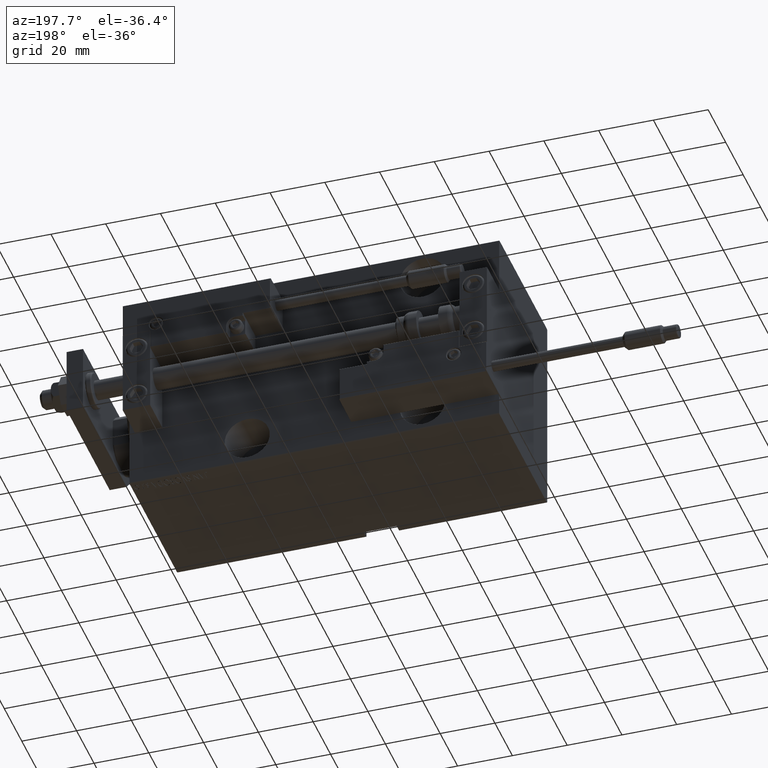
[diagram: clean part render]
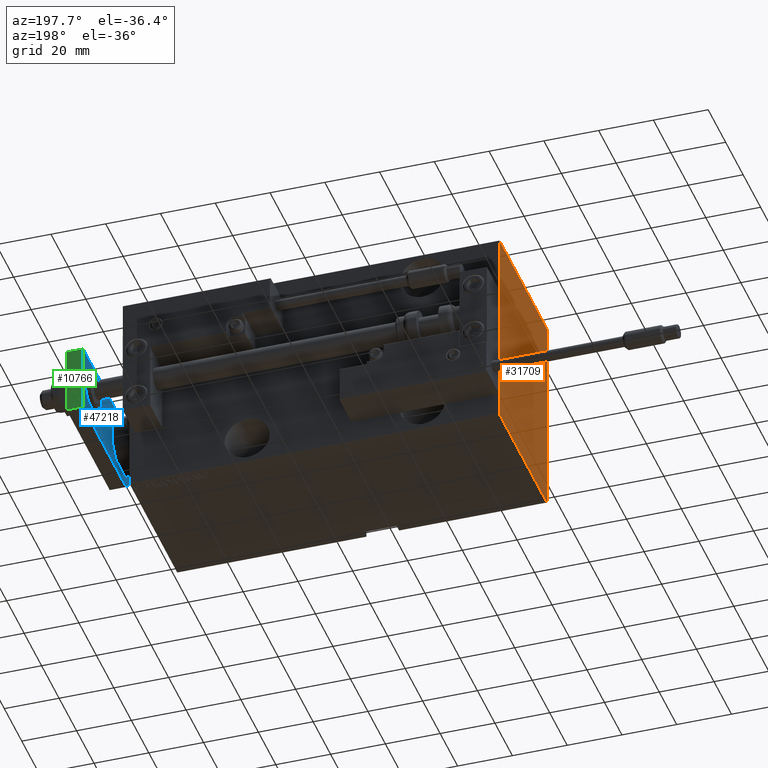
[diagram: same view with three faces highlighted in distinct colors, each labeled with its STEP entity id]
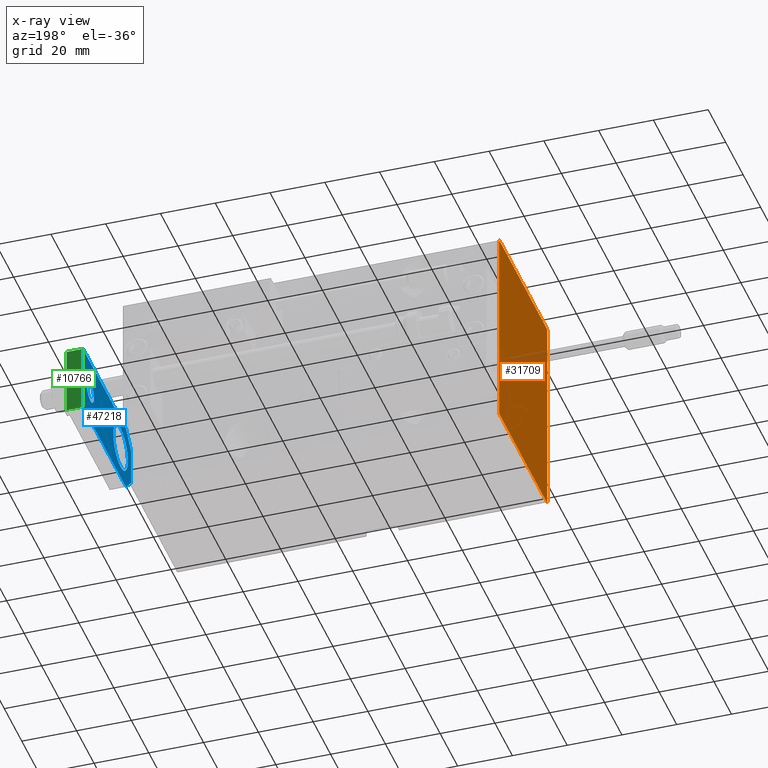
[diagram: x-ray of the same camera — body ghosted, the three highlighted faces saturated]
A machine part, auxiliary view with three faces highlighted in distinct colors.
The next image is the same camera in x-ray (body ghosted, the three faces saturated) — at least one of them is partly hidden behind the body in this view.
Their STEP definitions:

[orange] entity #31709 — the highlighted planar face has unit normal (-1, 0, 0).
#473 = VERTEX_POINT ( 'NONE', #15148 ) ;
#1025 = CARTESIAN_POINT ( 'NONE',  ( 135.0000000000000000, 27.49999999999999645, 37.20000000000002416 ) ) ;
#1327 = CARTESIAN_POINT ( 'NONE',  ( 135.0000000000000000, -27.50000000000000000, -37.19999999999999574 ) ) ;
#2713 = EDGE_CURVE ( 'NONE', #47358, #38459, #11305, .T. ) ;
#3469 = VECTOR ( 'NONE', #39888, 1000.000000000000114 ) ;
#4594 = EDGE_CURVE ( 'NONE', #6691, #47358, #10384, .T. ) ;
#4649 = ORIENTED_EDGE ( 'NONE', *, *, #10060, .T. ) ;
#6691 = VERTEX_POINT ( 'NONE', #20503 ) ;
#6986 = VECTOR ( 'NONE', #49739, 1000.000000000000000 ) ;
#7032 = CARTESIAN_POINT ( 'NONE',  ( 135.0000000000000000, -32.35000000000047038, 32.34999999999934772 ) ) ;
#7264 = DIRECTION ( 'NONE',  ( -0.000000000000000000, -0.7071067811865474617, 0.7071067811865474617 ) ) ;
#7605 = VERTEX_POINT ( 'NONE', #22005 ) ;
#8034 = DIRECTION ( 'NONE',  ( 0.000000000000000000, -0.7071067811865352493, -0.7071067811865597852 ) ) ;
#8132 = DIRECTION ( 'NONE',  ( 1.000000000000000000, 0.000000000000000000, 0.000000000000000000 ) ) ;
#9499 = LINE ( 'NONE', #36307, #3469 ) ;
#10060 = EDGE_CURVE ( 'NONE', #48967, #7605, #18114, .T. ) ;
#10175 = EDGE_CURVE ( 'NONE', #11397, #48967, #9499, .T. ) ;
#10384 = LINE ( 'NONE', #18697, #17034 ) ;
#10496 = VECTOR ( 'NONE', #7264, 1000.000000000000114 ) ;
#10740 = VECTOR ( 'NONE', #49268, 1000.000000000000000 ) ;
#11003 = VECTOR ( 'NONE', #43626, 1000.000000000000114 ) ;
#11175 = PLANE ( 'NONE',  #36686 ) ;
#11305 = LINE ( 'NONE', #15349, #10496 ) ;
#11397 = VERTEX_POINT ( 'NONE', #1327 ) ;
#12523 = VERTEX_POINT ( 'NONE', #22593 ) ;
#12560 = VECTOR ( 'NONE', #8034, 1000.000000000000000 ) ;
#14361 = ORIENTED_EDGE ( 'NONE', *, *, #36952, .T. ) ;
#14527 = LINE ( 'NONE', #38324, #6986 ) ;
#15148 = CARTESIAN_POINT ( 'NONE',  ( 135.0000000000000000, -27.50000000000000000, 37.19999999999998153 ) ) ;
#15349 = CARTESIAN_POINT ( 'NONE',  ( 135.0000000000000000, 32.35000000000000853, 32.35000000000000853 ) ) ;
#16776 = LINE ( 'NONE', #32224, #19930 ) ;
#17034 = VECTOR ( 'NONE', #45334, 1000.000000000000000 ) ;
#18114 = LINE ( 'NONE', #33568, #10740 ) ;
#18697 = CARTESIAN_POINT ( 'NONE',  ( 135.0000000000000000, 27.50000000000000355, -37.50000000000000711 ) ) ;
#19237 = DIRECTION ( 'NONE',  ( 0.000000000000000000, 0.000000000000000000, -1.000000000000000000 ) ) ;
#19930 = VECTOR ( 'NONE', #47684, 1000.000000000000000 ) ;
#20503 = CARTESIAN_POINT ( 'NONE',  ( 135.0000000000000000, 27.50000000000000355, -37.19999999999999574 ) ) ;
#21537 = CARTESIAN_POINT ( 'NONE',  ( 135.0000000000000000, 32.35000000000079012, -32.34999999999892140 ) ) ;
#21877 = ORIENTED_EDGE ( 'NONE', *, *, #4594, .T. ) ;
#22005 = CARTESIAN_POINT ( 'NONE',  ( 135.0000000000000000, 27.20000000000001350, -37.50000000000000711 ) ) ;
#22593 = CARTESIAN_POINT ( 'NONE',  ( 135.0000000000000000, -27.20000000000000284, 37.49999999999999289 ) ) ;
#23942 = ORIENTED_EDGE ( 'NONE', *, *, #38939, .T. ) ;
#25359 = LINE ( 'NONE', #21537, #11003 ) ;
#27244 = ORIENTED_EDGE ( 'NONE', *, *, #10175, .T. ) ;
#27261 = LINE ( 'NONE', #7032, #12560 ) ;
#28041 = ORIENTED_EDGE ( 'NONE', *, *, #36379, .T. ) ;
#30421 = FACE_OUTER_BOUND ( 'NONE', #35949, .T. ) ;
#31709 = ADVANCED_FACE ( 'NONE', ( #30421 ), #11175, .T. ) ;
#32224 = CARTESIAN_POINT ( 'NONE',  ( 135.0000000000000000, 27.49999999999999645, 37.50000000000000711 ) ) ;
#33568 = CARTESIAN_POINT ( 'NONE',  ( 135.0000000000000000, -27.50000000000000000, -37.50000000000000711 ) ) ;
#33652 = CARTESIAN_POINT ( 'NONE',  ( 135.0000000000000000, -27.19999999999997797, -37.50000000000000711 ) ) ;
#35949 = EDGE_LOOP ( 'NONE', ( #4649, #14361, #21877, #46046, #38631, #28041, #23942, #27244 ) ) ;
#36307 = CARTESIAN_POINT ( 'NONE',  ( 135.0000000000000000, -32.34999999999936193, -32.35000000000085407 ) ) ;
#36379 = EDGE_CURVE ( 'NONE', #12523, #473, #27261, .T. ) ;
#36686 = AXIS2_PLACEMENT_3D ( 'NONE', #38757, #8132, #19237 ) ;
#36952 = EDGE_CURVE ( 'NONE', #7605, #6691, #25359, .T. ) ;
#38324 = CARTESIAN_POINT ( 'NONE',  ( 135.0000000000000000, -27.50000000000000000, 37.49999999999999289 ) ) ;
#38459 = VERTEX_POINT ( 'NONE', #41826 ) ;
#38631 = ORIENTED_EDGE ( 'NONE', *, *, #39210, .T. ) ;
#38757 = CARTESIAN_POINT ( 'NONE',  ( 135.0000000000000000, 0.000000000000000000, 0.000000000000000000 ) ) ;
#38939 = EDGE_CURVE ( 'NONE', #473, #11397, #14527, .T. ) ;
#39210 = EDGE_CURVE ( 'NONE', #38459, #12523, #16776, .T. ) ;
#39888 = DIRECTION ( 'NONE',  ( -0.000000000000000000, 0.7071067811865638930, -0.7071067811865312525 ) ) ;
#41826 = CARTESIAN_POINT ( 'NONE',  ( 135.0000000000000000, 27.20000000000001705, 37.50000000000000711 ) ) ;
#43626 = DIRECTION ( 'NONE',  ( -0.000000000000000000, 0.7071067811865271446, 0.7071067811865678898 ) ) ;
#45334 = DIRECTION ( 'NONE',  ( 0.000000000000000000, -9.251858538542970348E-17, 1.000000000000000000 ) ) ;
#46046 = ORIENTED_EDGE ( 'NONE', *, *, #2713, .T. ) ;
#47358 = VERTEX_POINT ( 'NONE', #1025 ) ;
#47684 = DIRECTION ( 'NONE',  ( 0.000000000000000000, -1.000000000000000000, -2.523234146875355998E-16 ) ) ;
#48967 = VERTEX_POINT ( 'NONE', #33652 ) ;
#49268 = DIRECTION ( 'NONE',  ( 0.000000000000000000, 1.000000000000000000, 0.000000000000000000 ) ) ;
#49739 = DIRECTION ( 'NONE',  ( 0.000000000000000000, 0.000000000000000000, -1.000000000000000000 ) ) ;

[blue] entity #47218 — the highlighted planar face has unit normal (1, 0, -0).
#142 = VERTEX_POINT ( 'NONE', #17737 ) ;
#1291 = DIRECTION ( 'NONE',  ( -6.308085367188389994E-17, 1.000000000000000000, 0.000000000000000000 ) ) ;
#1352 = LINE ( 'NONE', #27929, #10029 ) ;
#2053 = EDGE_CURVE ( 'NONE', #37255, #29426, #26593, .T. ) ;
#2309 = EDGE_LOOP ( 'NONE', ( #23683, #36074 ) ) ;
#2320 = DIRECTION ( 'NONE',  ( -0.000000000000000000, 0.000000000000000000, 1.000000000000000000 ) ) ;
#2623 = VERTEX_POINT ( 'NONE', #21453 ) ;
#2725 = ORIENTED_EDGE ( 'NONE', *, *, #19153, .F. ) ;
#3973 = AXIS2_PLACEMENT_3D ( 'NONE', #33778, #45696, #10748 ) ;
#4368 = CARTESIAN_POINT ( 'NONE',  ( -12.49999999999999822, 55.00000000000000000, 0.000000000000000000 ) ) ;
#4654 = CARTESIAN_POINT ( 'NONE',  ( 4.000000000000000888, 46.50000000000000000, 0.000000000000000000 ) ) ;
#5273 = AXIS2_PLACEMENT_3D ( 'NONE', #11131, #37962, #30374 ) ;
#5623 = PLANE ( 'NONE',  #16120 ) ;
#6370 = CARTESIAN_POINT ( 'NONE',  ( 0.000000000000000000, 0.000000000000000000, 0.000000000000000000 ) ) ;
#6679 = EDGE_CURVE ( 'NONE', #37221, #142, #31668, .T. ) ;
#7353 = CARTESIAN_POINT ( 'NONE',  ( -12.50000000000000355, 5.660000000000005471, 0.000000000000000000 ) ) ;
#7500 = VERTEX_POINT ( 'NONE', #35721 ) ;
#7622 = EDGE_CURVE ( 'NONE', #29426, #37255, #43039, .T. ) ;
#7761 = VERTEX_POINT ( 'NONE', #40495 ) ;
#8526 = VECTOR ( 'NONE', #40513, 1000.000000000000000 ) ;
#9121 = CARTESIAN_POINT ( 'NONE',  ( -12.50000000000000355, 4.814824860968089633E-32, 0.000000000000000000 ) ) ;
#9904 = DIRECTION ( 'NONE',  ( 1.000000000000000000, 0.000000000000000000, 0.000000000000000000 ) ) ;
#9950 = FACE_BOUND ( 'NONE', #34515, .T. ) ;
#10029 = VECTOR ( 'NONE', #31220, 1000.000000000000000 ) ;
#10148 = DIRECTION ( 'NONE',  ( 0.000000000000000000, 0.000000000000000000, 1.000000000000000000 ) ) ;
#10748 = DIRECTION ( 'NONE',  ( 1.000000000000000000, 0.000000000000000000, 0.000000000000000000 ) ) ;
#11131 = CARTESIAN_POINT ( 'NONE',  ( -1.432611055310774642E-16, 46.50000000000000000, 0.000000000000000000 ) ) ;
#12061 = EDGE_CURVE ( 'NONE', #2623, #20067, #15515, .T. ) ;
#13158 = CARTESIAN_POINT ( 'NONE',  ( -8.250000000000000000, 11.99999999999999645, 0.000000000000000000 ) ) ;
#13722 = FACE_OUTER_BOUND ( 'NONE', #17263, .T. ) ;
#13764 = AXIS2_PLACEMENT_3D ( 'NONE', #48379, #10148, #9904 ) ;
#15515 = LINE ( 'NONE', #4368, #34270 ) ;
#16120 = AXIS2_PLACEMENT_3D ( 'NONE', #6370, #2320, #32721 ) ;
#17263 = EDGE_LOOP ( 'NONE', ( #20631, #41885, #30806, #2725, #27472, #39242 ) ) ;
#17737 = CARTESIAN_POINT ( 'NONE',  ( 12.50000000000000000, 55.00000000000000000, 0.000000000000000000 ) ) ;
#18546 = VECTOR ( 'NONE', #21762, 1000.000000000000000 ) ;
#19153 = EDGE_CURVE ( 'NONE', #142, #2623, #44115, .T. ) ;
#19790 = CIRCLE ( 'NONE', #5273, 4.000000000000000888 ) ;
#20067 = VERTEX_POINT ( 'NONE', #7353 ) ;
#20479 = CARTESIAN_POINT ( 'NONE',  ( 12.50000000000000355, 5.659999999999991260, 0.000000000000000000 ) ) ;
#20631 = ORIENTED_EDGE ( 'NONE', *, *, #36203, .F. ) ;
#21112 = ORIENTED_EDGE ( 'NONE', *, *, #35235, .T. ) ;
#21176 = AXIS2_PLACEMENT_3D ( 'NONE', #33666, #37466, #29857 ) ;
#21453 = CARTESIAN_POINT ( 'NONE',  ( -12.49999999999999822, 55.00000000000000000, 0.000000000000000000 ) ) ;
#21762 = DIRECTION ( 'NONE',  ( -1.000000000000000000, 0.000000000000000000, 0.000000000000000000 ) ) ;
#21783 = EDGE_CURVE ( 'NONE', #37221, #7761, #35162, .T. ) ;
#23683 = ORIENTED_EDGE ( 'NONE', *, *, #2053, .T. ) ;
#24309 = CARTESIAN_POINT ( 'NONE',  ( 12.50000000000000355, 4.814824860968089633E-32, 0.000000000000000000 ) ) ;
#25370 = FACE_BOUND ( 'NONE', #2309, .T. ) ;
#26593 = CIRCLE ( 'NONE', #3973, 8.250000000000000000 ) ;
#27472 = ORIENTED_EDGE ( 'NONE', *, *, #6679, .F. ) ;
#27929 = CARTESIAN_POINT ( 'NONE',  ( -6.840000000000012292, 4.814824860968089633E-32, 0.000000000000000000 ) ) ;
#28332 = LINE ( 'NONE', #9121, #8526 ) ;
#29426 = VERTEX_POINT ( 'NONE', #30771 ) ;
#29857 = DIRECTION ( 'NONE',  ( 1.000000000000000000, 0.000000000000000000, 0.000000000000000000 ) ) ;
#30374 = DIRECTION ( 'NONE',  ( 1.000000000000000000, 0.000000000000000000, 0.000000000000000000 ) ) ;
#30771 = CARTESIAN_POINT ( 'NONE',  ( 8.250000000000000000, 11.99999999999999822, 0.000000000000000000 ) ) ;
#30806 = ORIENTED_EDGE ( 'NONE', *, *, #12061, .F. ) ;
#31124 = DIRECTION ( 'NONE',  ( -0.7071067811865483499, -0.7071067811865465735, -0.000000000000000000 ) ) ;
#31198 = CARTESIAN_POINT ( 'NONE',  ( -6.840000000000012292, 4.814824860968089633E-32, 0.000000000000000000 ) ) ;
#31220 = DIRECTION ( 'NONE',  ( -0.7071067811865467956, 0.7071067811865483499, -0.000000000000000000 ) ) ;
#31668 = LINE ( 'NONE', #24309, #36518 ) ;
#32320 = EDGE_CURVE ( 'NONE', #47022, #20067, #1352, .T. ) ;
#32721 = DIRECTION ( 'NONE',  ( 1.000000000000000000, 0.000000000000000000, 0.000000000000000000 ) ) ;
#33223 = VECTOR ( 'NONE', #31124, 1000.000000000000114 ) ;
#33440 = CARTESIAN_POINT ( 'NONE',  ( 12.50000000000000000, 55.00000000000000000, 0.000000000000000000 ) ) ;
#33666 = CARTESIAN_POINT ( 'NONE',  ( -9.629649721936179265E-32, 11.99999999999999645, 0.000000000000000000 ) ) ;
#33778 = CARTESIAN_POINT ( 'NONE',  ( -9.629649721936179265E-32, 11.99999999999999645, 0.000000000000000000 ) ) ;
#34270 = VECTOR ( 'NONE', #46180, 1000.000000000000000 ) ;
#34515 = EDGE_LOOP ( 'NONE', ( #44829, #21112 ) ) ;
#34613 = VERTEX_POINT ( 'NONE', #4654 ) ;
#35162 = LINE ( 'NONE', #42308, #33223 ) ;
#35235 = EDGE_CURVE ( 'NONE', #34613, #7500, #19790, .T. ) ;
#35567 = CIRCLE ( 'NONE', #13764, 4.000000000000000888 ) ;
#35721 = CARTESIAN_POINT ( 'NONE',  ( -4.000000000000000888, 46.50000000000000000, 0.000000000000000000 ) ) ;
#36074 = ORIENTED_EDGE ( 'NONE', *, *, #7622, .T. ) ;
#36203 = EDGE_CURVE ( 'NONE', #47022, #7761, #28332, .T. ) ;
#36518 = VECTOR ( 'NONE', #1291, 1000.000000000000000 ) ;
#37221 = VERTEX_POINT ( 'NONE', #20479 ) ;
#37255 = VERTEX_POINT ( 'NONE', #13158 ) ;
#37466 = DIRECTION ( 'NONE',  ( 0.000000000000000000, 0.000000000000000000, 1.000000000000000000 ) ) ;
#37962 = DIRECTION ( 'NONE',  ( 0.000000000000000000, 0.000000000000000000, 1.000000000000000000 ) ) ;
#39242 = ORIENTED_EDGE ( 'NONE', *, *, #21783, .T. ) ;
#40495 = CARTESIAN_POINT ( 'NONE',  ( 6.839999999999998970, 4.814824860968089633E-32, 0.000000000000000000 ) ) ;
#40513 = DIRECTION ( 'NONE',  ( 1.000000000000000000, 0.000000000000000000, 0.000000000000000000 ) ) ;
#41885 = ORIENTED_EDGE ( 'NONE', *, *, #32320, .T. ) ;
#42308 = CARTESIAN_POINT ( 'NONE',  ( 12.50000000000000355, 5.659999999999991260, 0.000000000000000000 ) ) ;
#43039 = CIRCLE ( 'NONE', #21176, 8.250000000000000000 ) ;
#44115 = LINE ( 'NONE', #33440, #18546 ) ;
#44829 = ORIENTED_EDGE ( 'NONE', *, *, #48930, .T. ) ;
#45696 = DIRECTION ( 'NONE',  ( 0.000000000000000000, 0.000000000000000000, 1.000000000000000000 ) ) ;
#46180 = DIRECTION ( 'NONE',  ( -9.462128050782584375E-17, -1.000000000000000000, 0.000000000000000000 ) ) ;
#47022 = VERTEX_POINT ( 'NONE', #31198 ) ;
#47218 = ADVANCED_FACE ( 'NONE', ( #13722, #9950, #25370 ), #5623, .F. ) ;
#48379 = CARTESIAN_POINT ( 'NONE',  ( -1.432611055310774642E-16, 46.50000000000000000, 0.000000000000000000 ) ) ;
#48930 = EDGE_CURVE ( 'NONE', #7500, #34613, #35567, .T. ) ;

[green] entity #10766 — the highlighted planar face has unit normal (0, -1, -0).
#83 = VERTEX_POINT ( 'NONE', #23819 ) ;
#142 = VERTEX_POINT ( 'NONE', #17737 ) ;
#2623 = VERTEX_POINT ( 'NONE', #21453 ) ;
#3978 = FACE_OUTER_BOUND ( 'NONE', #29805, .T. ) ;
#4993 = CARTESIAN_POINT ( 'NONE',  ( 12.50000000000000000, 55.00000000000000000, 6.000000000000000000 ) ) ;
#6316 = VECTOR ( 'NONE', #44753, 1000.000000000000000 ) ;
#7420 = EDGE_CURVE ( 'NONE', #31907, #2623, #8645, .T. ) ;
#8645 = LINE ( 'NONE', #40294, #38929 ) ;
#10070 = VECTOR ( 'NONE', #18365, 1000.000000000000000 ) ;
#10766 = ADVANCED_FACE ( 'NONE', ( #3978 ), #31579, .F. ) ;
#13347 = DIRECTION ( 'NONE',  ( 0.000000000000000000, -0.000000000000000000, -1.000000000000000000 ) ) ;
#14316 = LINE ( 'NONE', #33808, #6316 ) ;
#17155 = ORIENTED_EDGE ( 'NONE', *, *, #19153, .T. ) ;
#17737 = CARTESIAN_POINT ( 'NONE',  ( 12.50000000000000000, 55.00000000000000000, 0.000000000000000000 ) ) ;
#18365 = DIRECTION ( 'NONE',  ( -1.000000000000000000, 0.000000000000000000, 0.000000000000000000 ) ) ;
#18546 = VECTOR ( 'NONE', #21762, 1000.000000000000000 ) ;
#19153 = EDGE_CURVE ( 'NONE', #142, #2623, #44115, .T. ) ;
#21453 = CARTESIAN_POINT ( 'NONE',  ( -12.49999999999999822, 55.00000000000000000, 0.000000000000000000 ) ) ;
#21762 = DIRECTION ( 'NONE',  ( -1.000000000000000000, 0.000000000000000000, 0.000000000000000000 ) ) ;
#23819 = CARTESIAN_POINT ( 'NONE',  ( 12.50000000000000000, 55.00000000000000000, 6.000000000000000000 ) ) ;
#25570 = CARTESIAN_POINT ( 'NONE',  ( -12.49999999999999822, 55.00000000000000000, 6.000000000000000000 ) ) ;
#28272 = DIRECTION ( 'NONE',  ( 0.000000000000000000, -1.000000000000000000, 0.000000000000000000 ) ) ;
#28513 = ORIENTED_EDGE ( 'NONE', *, *, #43954, .T. ) ;
#29358 = EDGE_CURVE ( 'NONE', #83, #31907, #50031, .T. ) ;
#29805 = EDGE_LOOP ( 'NONE', ( #17155, #39945, #47520, #28513 ) ) ;
#31579 = PLANE ( 'NONE',  #39036 ) ;
#31907 = VERTEX_POINT ( 'NONE', #25570 ) ;
#33440 = CARTESIAN_POINT ( 'NONE',  ( 12.50000000000000000, 55.00000000000000000, 0.000000000000000000 ) ) ;
#33808 = CARTESIAN_POINT ( 'NONE',  ( 12.50000000000000000, 55.00000000000000000, 6.000000000000000000 ) ) ;
#36731 = DIRECTION ( 'NONE',  ( -0.000000000000000000, -0.000000000000000000, -1.000000000000000000 ) ) ;
#38929 = VECTOR ( 'NONE', #36731, 1000.000000000000000 ) ;
#39036 = AXIS2_PLACEMENT_3D ( 'NONE', #4993, #28272, #13347 ) ;
#39945 = ORIENTED_EDGE ( 'NONE', *, *, #7420, .F. ) ;
#40294 = CARTESIAN_POINT ( 'NONE',  ( -12.49999999999999822, 55.00000000000000000, 6.000000000000000000 ) ) ;
#43954 = EDGE_CURVE ( 'NONE', #83, #142, #14316, .T. ) ;
#44115 = LINE ( 'NONE', #33440, #18546 ) ;
#44753 = DIRECTION ( 'NONE',  ( -0.000000000000000000, -0.000000000000000000, -1.000000000000000000 ) ) ;
#45007 = CARTESIAN_POINT ( 'NONE',  ( 12.50000000000000000, 55.00000000000000000, 6.000000000000000000 ) ) ;
#47520 = ORIENTED_EDGE ( 'NONE', *, *, #29358, .F. ) ;
#50031 = LINE ( 'NONE', #45007, #10070 ) ;